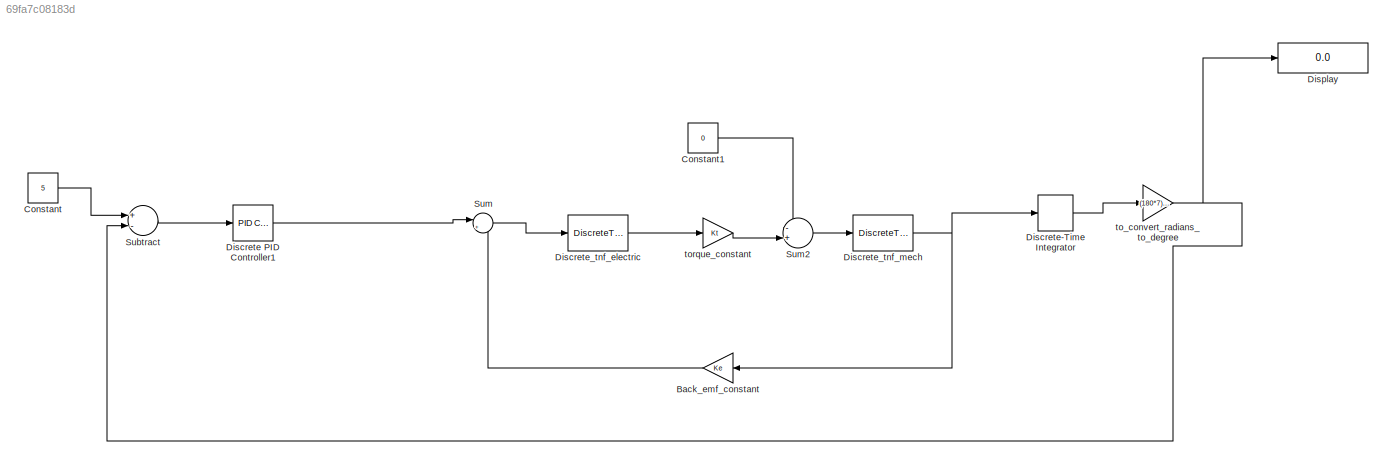
MODEL slx_69fa7c08183d
KIND model
CONFIG AbsTol = auto
CONFIG EnableMultiTasking = off
CONFIG FixedStep = 0.01
CONFIG MaxStep = auto
CONFIG MinStep = auto
CONFIG RelTol = 1e-3
CONFIG SampleTimeConstraint = Unconstrained
CONFIG Solver = FixedStepAuto
CONFIG SolverName = FixedStepAuto
CONFIG StartTime = 0.0
CONFIG StopTime = 10.0
BLOCK [Gain] Back_emf_constant 
  Gain = Ke
  OutDataTypeStr = Inherit: Inherit via internal rule
  ParamDataTypeStr = Inherit: Inherit via internal rule
  SaturateOnIntegerOverflow = off
BLOCK [Constant] Constant
  Value = 5
BLOCK [Constant] Constant1
  Value = 0
BLOCK [Reference] Discrete PID Controller1  REF=simulink/Continuous/PID Controller
  Ports = [1, 1]
  SourceBlock = simulink/Continuous/PID Controller
  SourceProductBaseCode = SL
  SourceProductName = Simulink
  SourceType = PID 1dof
BLOCK [DiscreteIntegrator] Discrete-Time Integrator
  ICPrevOutput = DiscIntNeverNeededParam
  ICPrevScaledInput = DiscIntNeverNeededParam
  InitialConditionSetting = Auto
  Ports = [1, 1]
  SampleTime = -1
BLOCK [DiscreteTransferFcn] Discrete_tnf_electric
  Denominator = TR_1_Z.Denominator{1,1}
  InputPortMap = u0
  Numerator = TR_1_Z.Numerator{1,1}
  Ports = [1, 1]
BLOCK [DiscreteTransferFcn] Discrete_tnf_mech
  Denominator = TR_2_Z.Denominator{1,1}
  InputPortMap = u0
  Numerator = TR_2_Z.Numerator{1,1}
  Ports = [1, 1]
BLOCK [Display] Display
  Decimation = 1
  Ports = [1]
BLOCK [Sum] Subtract
  InputSameDT = off
  Inputs = +-
  OutDataTypeStr = Inherit: Inherit via internal rule
  Ports = [2, 1]
  SaturateOnIntegerOverflow = off
BLOCK [Sum] Sum
  IconShape = round
  InputSameDT = off
  Inputs = |+-
  OutDataTypeStr = Inherit: Inherit via internal rule
  Ports = [2, 1]
  SaturateOnIntegerOverflow = off
BLOCK [Sum] Sum2
  IconShape = round
  InputSameDT = off
  Inputs = -+|
  OutDataTypeStr = Inherit: Inherit via internal rule
  Ports = [2, 1]
  SaturateOnIntegerOverflow = off
BLOCK [Gain] to_convert_radians_to_degree
  Gain = (180*7)/22
  OutDataTypeStr = Inherit: Inherit via internal rule
  ParamDataTypeStr = Inherit: Inherit via internal rule
  SaturateOnIntegerOverflow = off
BLOCK [Gain] torque_constant
  Gain = Kt
  OutDataTypeStr = Inherit: Inherit via internal rule
  ParamDataTypeStr = Inherit: Inherit via internal rule
  SaturateOnIntegerOverflow = off
LINE Back_emf_constant :1 -> Sum:2
LINE Constant1:1 -> Sum2:1
LINE Constant:1 -> Subtract:1
LINE Discrete PID Controller1:1 -> Sum:1
LINE Discrete-Time Integrator:1 -> to_convert_radians_to_degree:1
LINE Discrete_tnf_electric:1 -> torque_constant:1
NET Discrete_tnf_mech:1 -> Back_emf_constant :1, Discrete-Time Integrator:1
LINE Subtract:1 -> Discrete PID Controller1:1
LINE Sum2:1 -> Discrete_tnf_mech:1
LINE Sum:1 -> Discrete_tnf_electric:1
NET to_convert_radians_to_degree:1 -> Display:1, Subtract:2
LINE torque_constant:1 -> Sum2:2
note: NET lines group one-source signal fan-out (src -> all destinations, sorted); 1:1 wires keep LINE
